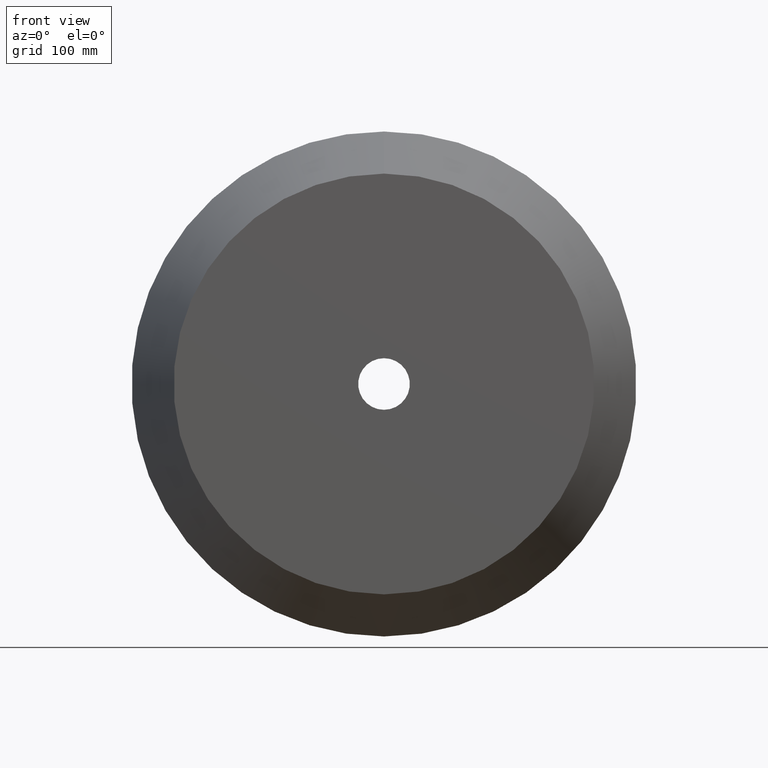
[diagram: clean part render]
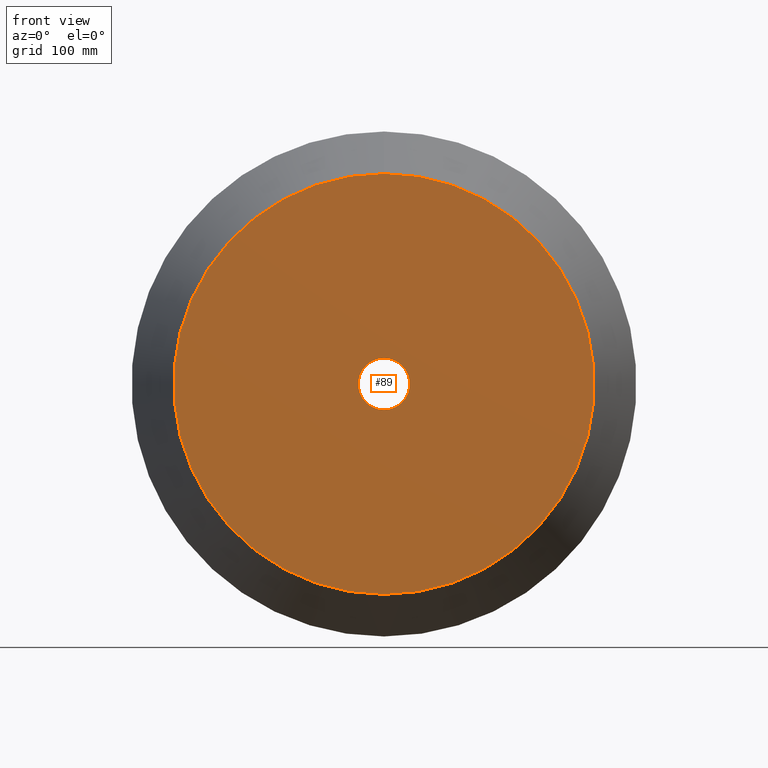
[diagram: same view with one face highlighted and labeled with its STEP entity id]
A machine part, front view. The second image highlights one B-rep face of the part: STEP entity #89.
In plain terms, the highlighted planar face has unit normal (0, 1, 0).
Its self-contained STEP definition (entity closure, byte-faithful):
#1 = DIRECTION ( 'NONE',  ( -0.0000000000000000000, -1.000000000000000000, -0.0000000000000000000 ) ) ;
#11 = AXIS2_PLACEMENT_3D ( 'NONE', #330, #200, #170 ) ;
#16 = FACE_BOUND ( 'NONE', #270, .T. ) ;
#21 = ORIENTED_EDGE ( 'NONE', *, *, #40, .T. ) ;
#34 = ORIENTED_EDGE ( 'NONE', *, *, #304, .F. ) ;
#37 = FACE_OUTER_BOUND ( 'NONE', #234, .T. ) ;
#40 = EDGE_CURVE ( 'NONE', #309, #60, #128, .T. ) ;
#41 = CIRCLE ( 'NONE', #107, 23.00000000000000000 ) ;
#42 = AXIS2_PLACEMENT_3D ( 'NONE', #76, #159, #186 ) ;
#46 = CIRCLE ( 'NONE', #42, 187.5000000000000000 ) ;
#49 = CARTESIAN_POINT ( 'NONE',  ( 2.816687638038912400E-015, 0.0000000000000000000, 23.00000000000000000 ) ) ;
#60 = VERTEX_POINT ( 'NONE', #279 ) ;
#62 = EDGE_CURVE ( 'NONE', #199, #216, #41, .T. ) ;
#76 = CARTESIAN_POINT ( 'NONE',  ( 0.0000000000000000000, -2.081668171172168500E-014, 0.0000000000000000000 ) ) ;
#89 = ADVANCED_FACE ( 'NONE', ( #16, #37 ), #93, .F. ) ;
#93 = PLANE ( 'NONE',  #109 ) ;
#107 = AXIS2_PLACEMENT_3D ( 'NONE', #148, #1, #294 ) ;
#109 = AXIS2_PLACEMENT_3D ( 'NONE', #111, #113, #147 ) ;
#111 = CARTESIAN_POINT ( 'NONE',  ( -23.00000000000000000, -1.040834085586084300E-014, 0.0000000000000000000 ) ) ;
#113 = DIRECTION ( 'NONE',  ( 0.0000000000000000000, 1.000000000000000000, 0.0000000000000000000 ) ) ;
#124 = DIRECTION ( 'NONE',  ( 0.0000000000000000000, 0.0000000000000000000, -1.000000000000000000 ) ) ;
#128 = CIRCLE ( 'NONE', #11, 187.5000000000000000 ) ;
#147 = DIRECTION ( 'NONE',  ( 0.0000000000000000000, -0.0000000000000000000, 1.000000000000000000 ) ) ;
#148 = CARTESIAN_POINT ( 'NONE',  ( 0.0000000000000000000, 0.0000000000000000000, 0.0000000000000000000 ) ) ;
#159 = DIRECTION ( 'NONE',  ( -0.0000000000000000000, -1.000000000000000000, -0.0000000000000000000 ) ) ;
#170 = DIRECTION ( 'NONE',  ( 0.0000000000000000000, 0.0000000000000000000, -1.000000000000000000 ) ) ;
#186 = DIRECTION ( 'NONE',  ( 0.0000000000000000000, 0.0000000000000000000, -1.000000000000000000 ) ) ;
#193 = DIRECTION ( 'NONE',  ( -0.0000000000000000000, -1.000000000000000000, -0.0000000000000000000 ) ) ;
#199 = VERTEX_POINT ( 'NONE', #272 ) ;
#200 = DIRECTION ( 'NONE',  ( -0.0000000000000000000, -1.000000000000000000, -0.0000000000000000000 ) ) ;
#207 = CIRCLE ( 'NONE', #285, 23.00000000000000000 ) ;
#216 = VERTEX_POINT ( 'NONE', #49 ) ;
#232 = ORIENTED_EDGE ( 'NONE', *, *, #310, .T. ) ;
#234 = EDGE_LOOP ( 'NONE', ( #232, #21 ) ) ;
#256 = CARTESIAN_POINT ( 'NONE',  ( 2.525834023241416200E-014, -2.081668171172168500E-014, -187.5000000000000000 ) ) ;
#269 = CARTESIAN_POINT ( 'NONE',  ( 0.0000000000000000000, 0.0000000000000000000, 0.0000000000000000000 ) ) ;
#270 = EDGE_LOOP ( 'NONE', ( #295, #34 ) ) ;
#272 = CARTESIAN_POINT ( 'NONE',  ( 0.0000000000000000000, 0.0000000000000000000, -23.00000000000000000 ) ) ;
#279 = CARTESIAN_POINT ( 'NONE',  ( 0.0000000000000000000, -2.081668171172168500E-014, 187.5000000000000000 ) ) ;
#285 = AXIS2_PLACEMENT_3D ( 'NONE', #269, #193, #124 ) ;
#294 = DIRECTION ( 'NONE',  ( 0.0000000000000000000, 0.0000000000000000000, -1.000000000000000000 ) ) ;
#295 = ORIENTED_EDGE ( 'NONE', *, *, #62, .F. ) ;
#304 = EDGE_CURVE ( 'NONE', #216, #199, #207, .T. ) ;
#309 = VERTEX_POINT ( 'NONE', #256 ) ;
#310 = EDGE_CURVE ( 'NONE', #60, #309, #46, .T. ) ;
#330 = CARTESIAN_POINT ( 'NONE',  ( 0.0000000000000000000, -2.081668171172168500E-014, 0.0000000000000000000 ) ) ;